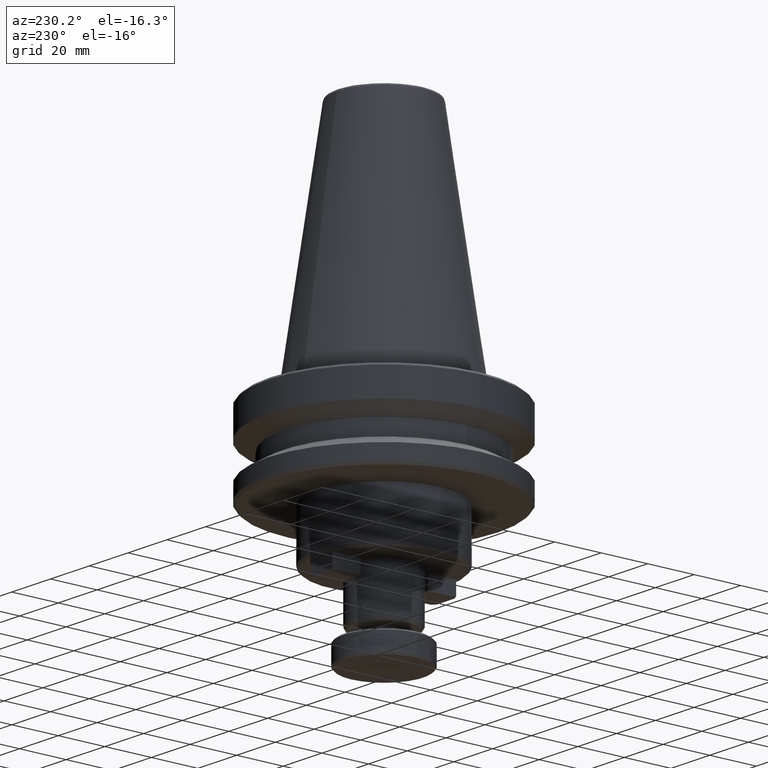
[diagram: clean part render]
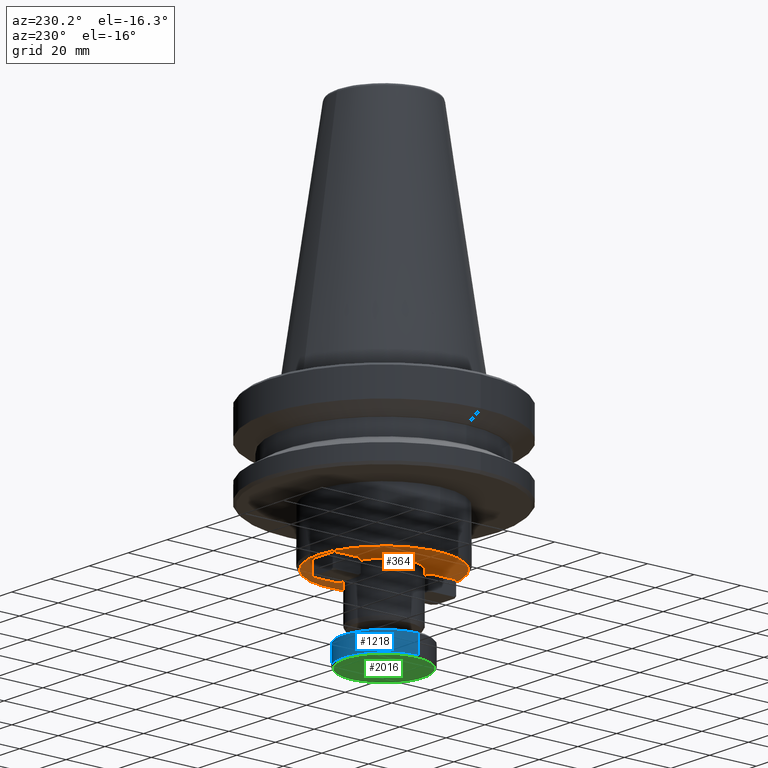
[diagram: same view with three faces highlighted in distinct colors, each labeled with its STEP entity id]
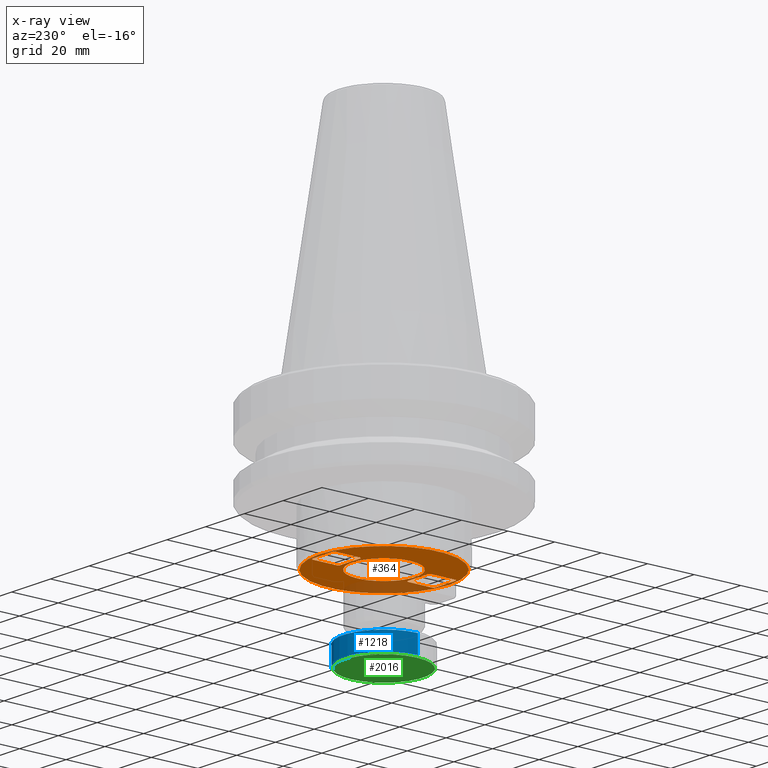
[diagram: x-ray of the same camera — body ghosted, the three highlighted faces saturated]
A machine part, auxiliary view with three faces highlighted in distinct colors.
The next image is the same camera in x-ray (body ghosted, the three faces saturated) — at least one of them is partly hidden behind the body in this view.
Their STEP definitions:

[orange] entity #364 — the highlighted planar face has unit normal (0, 0, -1).
#2 = ORIENTED_EDGE ( 'NONE', *, *, #1203, .T. ) ;
#12 = ORIENTED_EDGE ( 'NONE', *, *, #585, .T. ) ;
#17 = AXIS2_PLACEMENT_3D ( 'NONE', #122, #118, #115 ) ;
#42 = CIRCLE ( 'NONE', #17, 13.50000000000000200 ) ;
#53 = ORIENTED_EDGE ( 'NONE', *, *, #609, .T. ) ;
#69 = VERTEX_POINT ( 'NONE', #2094 ) ;
#96 = LINE ( 'NONE', #108, #453 ) ;
#103 = VERTEX_POINT ( 'NONE', #1410 ) ;
#108 = CARTESIAN_POINT ( 'NONE',  ( -5.400000000000011000, 26.50000000000000400, -60.00000000000000000 ) ) ;
#113 = DIRECTION ( 'NONE',  ( -0.7071067811865311400, -0.7071067811865638900, -0.0000000000000000000 ) ) ;
#115 = DIRECTION ( 'NONE',  ( 1.000000000000000000, 0.0000000000000000000, 0.0000000000000000000 ) ) ;
#118 = DIRECTION ( 'NONE',  ( 0.0000000000000000000, 0.0000000000000000000, 1.000000000000000000 ) ) ;
#122 = CARTESIAN_POINT ( 'NONE',  ( 0.0000000000000000000, 0.0000000000000000000, -60.00000000000001400 ) ) ;
#125 = DIRECTION ( 'NONE',  ( -0.7071067811865481300, 0.7071067811865470200, -0.0000000000000000000 ) ) ;
#172 = EDGE_CURVE ( 'NONE', #1590, #220, #2104, .T. ) ;
#174 = VERTEX_POINT ( 'NONE', #1795 ) ;
#220 = VERTEX_POINT ( 'NONE', #1137 ) ;
#224 = CARTESIAN_POINT ( 'NONE',  ( 13.50000000000000200, 0.0000000000000000000, -60.00000000000001400 ) ) ;
#271 = CARTESIAN_POINT ( 'NONE',  ( 0.0000000000000000000, -14.49999999999999800, -60.00000000000000000 ) ) ;
#276 = VECTOR ( 'NONE', #2610, 1000.000000000000100 ) ;
#278 = CIRCLE ( 'NONE', #2473, 28.00000000000000700 ) ;
#279 = EDGE_CURVE ( 'NONE', #103, #1699, #278, .T. ) ;
#280 = VERTEX_POINT ( 'NONE', #1556 ) ;
#286 = CARTESIAN_POINT ( 'NONE',  ( -6.000000000000006200, -25.89999999999998100, -60.00000000000000000 ) ) ;
#289 = DIRECTION ( 'NONE',  ( -1.000000000000000000, 0.0000000000000000000, -0.0000000000000000000 ) ) ;
#291 = VERTEX_POINT ( 'NONE', #1043 ) ;
#305 = CARTESIAN_POINT ( 'NONE',  ( 0.0000000000000000000, 26.50000000000000400, -60.00000000000000000 ) ) ;
#322 = VECTOR ( 'NONE', #2665, 1000.000000000000000 ) ;
#323 = CARTESIAN_POINT ( 'NONE',  ( -6.000000000000003600, -25.89999999999998400, -60.00000000000000000 ) ) ;
#329 = EDGE_CURVE ( 'NONE', #1699, #103, #1589, .T. ) ;
#334 = DIRECTION ( 'NONE',  ( -0.0000000000000000000, -1.000000000000000000, -0.0000000000000000000 ) ) ;
#340 = EDGE_CURVE ( 'NONE', #828, #2052, #479, .T. ) ;
#343 = ORIENTED_EDGE ( 'NONE', *, *, #673, .T. ) ;
#347 = CARTESIAN_POINT ( 'NONE',  ( -6.000000000000000000, 0.0000000000000000000, -60.00000000000000000 ) ) ;
#364 = ADVANCED_FACE ( 'NONE', ( #1517, #2211, #426, #2688 ), #753, .T. ) ;
#381 = VECTOR ( 'NONE', #2075, 1000.000000000000000 ) ;
#400 = CARTESIAN_POINT ( 'NONE',  ( 5.999999999999992900, 0.0000000000000000000, -60.00000000000000000 ) ) ;
#402 = VERTEX_POINT ( 'NONE', #2010 ) ;
#426 = FACE_BOUND ( 'NONE', #489, .T. ) ;
#432 = DIRECTION ( 'NONE',  ( 0.0000000000000000000, -1.196361017915039500E-016, 1.000000000000000000 ) ) ;
#445 = LINE ( 'NONE', #400, #2711 ) ;
#447 = DIRECTION ( 'NONE',  ( 0.7071067811865474600, 0.7071067811865474600, -0.0000000000000000000 ) ) ;
#451 = DIRECTION ( 'NONE',  ( 0.0000000000000000000, -1.000000000000000000, 0.0000000000000000000 ) ) ;
#453 = VECTOR ( 'NONE', #113, 1000.000000000000000 ) ;
#457 = DIRECTION ( 'NONE',  ( -1.000000000000000000, 0.0000000000000000000, -0.0000000000000000000 ) ) ;
#462 = ORIENTED_EDGE ( 'NONE', *, *, #2659, .T. ) ;
#479 = LINE ( 'NONE', #821, #2138 ) ;
#483 = EDGE_CURVE ( 'NONE', #1815, #220, #1763, .T. ) ;
#489 = EDGE_LOOP ( 'NONE', ( #2114, #2734, #462, #946, #2188, #53, #515, #1420 ) ) ;
#496 = VECTOR ( 'NONE', #2071, 1000.000000000000100 ) ;
#498 = EDGE_CURVE ( 'NONE', #1550, #1636, #617, .T. ) ;
#502 = DIRECTION ( 'NONE',  ( 0.0000000000000000000, -1.000000000000000000, 0.0000000000000000000 ) ) ;
#514 = CARTESIAN_POINT ( 'NONE',  ( 0.0000000000000000000, 1.196361017915032100E-016, -60.00000000000000000 ) ) ;
#515 = ORIENTED_EDGE ( 'NONE', *, *, #483, .T. ) ;
#547 = VERTEX_POINT ( 'NONE', #224 ) ;
#585 = EDGE_CURVE ( 'NONE', #2681, #547, #42, .T. ) ;
#609 = EDGE_CURVE ( 'NONE', #1636, #1815, #96, .T. ) ;
#617 = LINE ( 'NONE', #305, #1839 ) ;
#649 = CARTESIAN_POINT ( 'NONE',  ( 0.0000000000000000000, 1.196361017915032100E-016, -60.00000000000000000 ) ) ;
#663 = LINE ( 'NONE', #2557, #1898 ) ;
#673 = EDGE_CURVE ( 'NONE', #912, #402, #758, .T. ) ;
#695 = LINE ( 'NONE', #1592, #1316 ) ;
#737 = DIRECTION ( 'NONE',  ( 0.0000000000000000000, -1.196361017915039500E-016, 1.000000000000000000 ) ) ;
#753 = PLANE ( 'NONE',  #2212 ) ;
#758 = LINE ( 'NONE', #1973, #276 ) ;
#808 = CARTESIAN_POINT ( 'NONE',  ( -6.000000000000002700, 15.10000000000001600, -60.00000000000000000 ) ) ;
#821 = CARTESIAN_POINT ( 'NONE',  ( 5.399999999999953300, 14.49999999999999500, -60.00000000000000000 ) ) ;
#824 = ORIENTED_EDGE ( 'NONE', *, *, #2579, .T. ) ;
#828 = VERTEX_POINT ( 'NONE', #1743 ) ;
#836 = VECTOR ( 'NONE', #125, 1000.000000000000000 ) ;
#856 = CARTESIAN_POINT ( 'NONE',  ( 0.0000000000000000000, 0.0000000000000000000, -60.00000000000001400 ) ) ;
#873 = EDGE_CURVE ( 'NONE', #547, #2681, #1028, .T. ) ;
#887 = ORIENTED_EDGE ( 'NONE', *, *, #2344, .T. ) ;
#888 = LINE ( 'NONE', #286, #836 ) ;
#894 = ORIENTED_EDGE ( 'NONE', *, *, #329, .F. ) ;
#912 = VERTEX_POINT ( 'NONE', #2706 ) ;
#942 = EDGE_CURVE ( 'NONE', #69, #291, #445, .T. ) ;
#946 = ORIENTED_EDGE ( 'NONE', *, *, #1808, .F. ) ;
#979 = CARTESIAN_POINT ( 'NONE',  ( 0.0000000000000000000, 0.0000000000000000000, -60.00000000000000000 ) ) ;
#982 = EDGE_LOOP ( 'NONE', ( #894, #1514 ) ) ;
#1028 = CIRCLE ( 'NONE', #2369, 13.50000000000000200 ) ;
#1029 = VECTOR ( 'NONE', #457, 1000.000000000000000 ) ;
#1043 = CARTESIAN_POINT ( 'NONE',  ( 5.999999999999994700, -15.10000000000004400, -60.00000000000000000 ) ) ;
#1071 = DIRECTION ( 'NONE',  ( 1.000000000000000000, 0.0000000000000000000, 0.0000000000000000000 ) ) ;
#1108 = DIRECTION ( 'NONE',  ( 0.0000000000000000000, 1.000000000000000000, 0.0000000000000000000 ) ) ;
#1113 = CARTESIAN_POINT ( 'NONE',  ( 5.999999999999998200, 0.0000000000000000000, -60.00000000000000000 ) ) ;
#1130 = CARTESIAN_POINT ( 'NONE',  ( -13.50000000000000200, 1.653273178848927100E-015, -60.00000000000001400 ) ) ;
#1137 = CARTESIAN_POINT ( 'NONE',  ( -6.000000000000001800, 15.10000000000001600, -60.00000000000000000 ) ) ;
#1147 = VECTOR ( 'NONE', #334, 1000.000000000000000 ) ;
#1148 = DIRECTION ( 'NONE',  ( -0.7071067811865470200, 0.7071067811865480200, -0.0000000000000000000 ) ) ;
#1156 = CARTESIAN_POINT ( 'NONE',  ( 5.399999999999982600, 26.50000000000000400, -60.00000000000000000 ) ) ;
#1203 = EDGE_CURVE ( 'NONE', #280, #912, #1644, .T. ) ;
#1217 = VECTOR ( 'NONE', #1108, 1000.000000000000000 ) ;
#1261 = DIRECTION ( 'NONE',  ( -0.0000000000000000000, -1.000000000000000000, -0.0000000000000000000 ) ) ;
#1272 = CARTESIAN_POINT ( 'NONE',  ( -5.999999999999995600, 0.0000000000000000000, -60.00000000000000000 ) ) ;
#1276 = EDGE_CURVE ( 'NONE', #174, #1437, #888, .T. ) ;
#1316 = VECTOR ( 'NONE', #1586, 1000.000000000000000 ) ;
#1400 = VECTOR ( 'NONE', #1148, 1000.000000000000000 ) ;
#1410 = CARTESIAN_POINT ( 'NONE',  ( 3.490243377569955700E-015, 28.00000000000000700, -60.00000000000000000 ) ) ;
#1420 = ORIENTED_EDGE ( 'NONE', *, *, #172, .F. ) ;
#1437 = VERTEX_POINT ( 'NONE', #323 ) ;
#1500 = ORIENTED_EDGE ( 'NONE', *, *, #942, .T. ) ;
#1514 = ORIENTED_EDGE ( 'NONE', *, *, #279, .F. ) ;
#1517 = FACE_OUTER_BOUND ( 'NONE', #982, .T. ) ;
#1534 = CARTESIAN_POINT ( 'NONE',  ( 5.400000000000003000, -26.50000000000000400, -60.00000000000000000 ) ) ;
#1550 = VERTEX_POINT ( 'NONE', #1156 ) ;
#1556 = CARTESIAN_POINT ( 'NONE',  ( 5.399999999999948800, -14.49999999999999800, -60.00000000000000000 ) ) ;
#1586 = DIRECTION ( 'NONE',  ( 0.7071067811865311400, 0.7071067811865638900, -0.0000000000000000000 ) ) ;
#1589 = CIRCLE ( 'NONE', #2605, 28.00000000000000700 ) ;
#1590 = VERTEX_POINT ( 'NONE', #2480 ) ;
#1592 = CARTESIAN_POINT ( 'NONE',  ( 5.400000000000003900, -26.50000000000000000, -60.00000000000000000 ) ) ;
#1599 = EDGE_LOOP ( 'NONE', ( #2673, #887, #1500, #2122, #2, #343, #824, #2042 ) ) ;
#1636 = VERTEX_POINT ( 'NONE', #2697 ) ;
#1644 = LINE ( 'NONE', #271, #1029 ) ;
#1650 = EDGE_CURVE ( 'NONE', #1590, #828, #2091, .T. ) ;
#1699 = VERTEX_POINT ( 'NONE', #2632 ) ;
#1743 = CARTESIAN_POINT ( 'NONE',  ( 5.399999999999955100, 14.49999999999999500, -60.00000000000000000 ) ) ;
#1763 = LINE ( 'NONE', #347, #1147 ) ;
#1778 = VERTEX_POINT ( 'NONE', #2547 ) ;
#1795 = CARTESIAN_POINT ( 'NONE',  ( -5.399999999999987900, -26.50000000000000000, -60.00000000000000000 ) ) ;
#1808 = EDGE_CURVE ( 'NONE', #1550, #1778, #663, .T. ) ;
#1815 = VERTEX_POINT ( 'NONE', #2518 ) ;
#1839 = VECTOR ( 'NONE', #289, 1000.000000000000000 ) ;
#1898 = VECTOR ( 'NONE', #2539, 1000.000000000000100 ) ;
#1973 = CARTESIAN_POINT ( 'NONE',  ( -5.400000000000005700, -14.49999999999999800, -60.00000000000000000 ) ) ;
#1977 = EDGE_CURVE ( 'NONE', #280, #291, #2161, .T. ) ;
#1985 = LINE ( 'NONE', #1113, #1217 ) ;
#1990 = EDGE_CURVE ( 'NONE', #174, #2393, #2014, .T. ) ;
#2008 = CARTESIAN_POINT ( 'NONE',  ( 5.999999999999998200, 15.10000000000004100, -60.00000000000000000 ) ) ;
#2010 = CARTESIAN_POINT ( 'NONE',  ( -5.999999999999994700, -15.10000000000001600, -60.00000000000000000 ) ) ;
#2014 = LINE ( 'NONE', #2064, #381 ) ;
#2023 = DIRECTION ( 'NONE',  ( 0.0000000000000000000, 0.0000000000000000000, -1.000000000000000000 ) ) ;
#2025 = DIRECTION ( 'NONE',  ( -1.000000000000000000, 0.0000000000000000000, -0.0000000000000000000 ) ) ;
#2042 = ORIENTED_EDGE ( 'NONE', *, *, #1276, .F. ) ;
#2052 = VERTEX_POINT ( 'NONE', #2008 ) ;
#2057 = VECTOR ( 'NONE', #1261, 1000.000000000000000 ) ;
#2064 = CARTESIAN_POINT ( 'NONE',  ( 0.0000000000000000000, -26.50000000000000000, -60.00000000000000000 ) ) ;
#2071 = DIRECTION ( 'NONE',  ( 0.7071067811865474600, -0.7071067811865474600, -0.0000000000000000000 ) ) ;
#2073 = CARTESIAN_POINT ( 'NONE',  ( 5.999999999999994700, -15.10000000000004400, -60.00000000000000000 ) ) ;
#2075 = DIRECTION ( 'NONE',  ( 1.000000000000000000, -0.0000000000000000000, 0.0000000000000000000 ) ) ;
#2091 = LINE ( 'NONE', #2694, #322 ) ;
#2094 = CARTESIAN_POINT ( 'NONE',  ( 5.999999999999993800, -25.89999999999997700, -60.00000000000000000 ) ) ;
#2104 = LINE ( 'NONE', #808, #1400 ) ;
#2112 = DIRECTION ( 'NONE',  ( 0.0000000000000000000, 1.000000000000000000, 0.0000000000000000000 ) ) ;
#2114 = ORIENTED_EDGE ( 'NONE', *, *, #1650, .T. ) ;
#2122 = ORIENTED_EDGE ( 'NONE', *, *, #1977, .F. ) ;
#2126 = LINE ( 'NONE', #1272, #2057 ) ;
#2135 = ORIENTED_EDGE ( 'NONE', *, *, #873, .T. ) ;
#2138 = VECTOR ( 'NONE', #447, 1000.000000000000100 ) ;
#2161 = LINE ( 'NONE', #2073, #496 ) ;
#2188 = ORIENTED_EDGE ( 'NONE', *, *, #498, .T. ) ;
#2211 = FACE_BOUND ( 'NONE', #2221, .T. ) ;
#2212 = AXIS2_PLACEMENT_3D ( 'NONE', #979, #2023, #2025 ) ;
#2221 = EDGE_LOOP ( 'NONE', ( #2135, #12 ) ) ;
#2344 = EDGE_CURVE ( 'NONE', #2393, #69, #695, .T. ) ;
#2369 = AXIS2_PLACEMENT_3D ( 'NONE', #856, #2479, #1071 ) ;
#2393 = VERTEX_POINT ( 'NONE', #1534 ) ;
#2473 = AXIS2_PLACEMENT_3D ( 'NONE', #649, #737, #502 ) ;
#2479 = DIRECTION ( 'NONE',  ( 0.0000000000000000000, 0.0000000000000000000, 1.000000000000000000 ) ) ;
#2480 = CARTESIAN_POINT ( 'NONE',  ( -5.399999999999987900, 14.49999999999999800, -60.00000000000000000 ) ) ;
#2518 = CARTESIAN_POINT ( 'NONE',  ( -6.000000000000000000, 25.89999999999998400, -60.00000000000000000 ) ) ;
#2539 = DIRECTION ( 'NONE',  ( 0.7071067811865474600, -0.7071067811865474600, -0.0000000000000000000 ) ) ;
#2547 = CARTESIAN_POINT ( 'NONE',  ( 5.999999999999999100, 25.89999999999998400, -60.00000000000000000 ) ) ;
#2557 = CARTESIAN_POINT ( 'NONE',  ( 6.000000000000000000, 25.89999999999998400, -60.00000000000000000 ) ) ;
#2579 = EDGE_CURVE ( 'NONE', #402, #1437, #2126, .T. ) ;
#2605 = AXIS2_PLACEMENT_3D ( 'NONE', #514, #432, #451 ) ;
#2610 = DIRECTION ( 'NONE',  ( -0.7071067811865317000, -0.7071067811865632300, -0.0000000000000000000 ) ) ;
#2632 = CARTESIAN_POINT ( 'NONE',  ( 0.0000000000000000000, -28.00000000000000700, -60.00000000000000000 ) ) ;
#2659 = EDGE_CURVE ( 'NONE', #2052, #1778, #1985, .T. ) ;
#2665 = DIRECTION ( 'NONE',  ( 1.000000000000000000, -0.0000000000000000000, 0.0000000000000000000 ) ) ;
#2673 = ORIENTED_EDGE ( 'NONE', *, *, #1990, .T. ) ;
#2681 = VERTEX_POINT ( 'NONE', #1130 ) ;
#2688 = FACE_BOUND ( 'NONE', #1599, .T. ) ;
#2694 = CARTESIAN_POINT ( 'NONE',  ( 0.0000000000000000000, 14.49999999999999800, -60.00000000000000000 ) ) ;
#2697 = CARTESIAN_POINT ( 'NONE',  ( -5.400000000000010100, 26.50000000000000400, -60.00000000000000000 ) ) ;
#2706 = CARTESIAN_POINT ( 'NONE',  ( -5.400000000000005700, -14.49999999999999800, -60.00000000000000000 ) ) ;
#2711 = VECTOR ( 'NONE', #2112, 1000.000000000000000 ) ;
#2734 = ORIENTED_EDGE ( 'NONE', *, *, #340, .T. ) ;

[blue] entity #1218 — the highlighted cylindrical surface (partial cylindrical patch) has radius 17.5 mm, axis along (0, 0, 1).
#61 = FACE_OUTER_BOUND ( 'NONE', #2467, .T. ) ;
#73 = VERTEX_POINT ( 'NONE', #1117 ) ;
#277 = DIRECTION ( 'NONE',  ( 1.000000000000000000, 0.0000000000000000000, 0.0000000000000000000 ) ) ;
#283 = VERTEX_POINT ( 'NONE', #1480 ) ;
#331 = LINE ( 'NONE', #1641, #2643 ) ;
#393 = EDGE_CURVE ( 'NONE', #283, #73, #1362, .T. ) ;
#539 = AXIS2_PLACEMENT_3D ( 'NONE', #1907, #1882, #967 ) ;
#635 = CIRCLE ( 'NONE', #2559, 17.49999999999999600 ) ;
#666 = CARTESIAN_POINT ( 'NONE',  ( 0.0000000000000000000, 0.0000000000000000000, -85.70000000000000300 ) ) ;
#679 = ORIENTED_EDGE ( 'NONE', *, *, #844, .F. ) ;
#720 = LINE ( 'NONE', #2569, #1820 ) ;
#844 = EDGE_CURVE ( 'NONE', #2410, #1688, #635, .T. ) ;
#848 = DIRECTION ( 'NONE',  ( -1.000000000000000000, 0.0000000000000000000, 0.0000000000000000000 ) ) ;
#967 = DIRECTION ( 'NONE',  ( 1.000000000000000000, 0.0000000000000000000, 0.0000000000000000000 ) ) ;
#1117 = CARTESIAN_POINT ( 'NONE',  ( -17.50000000000000400, 2.143131898507868600E-015, -93.29999999999998300 ) ) ;
#1157 = ORIENTED_EDGE ( 'NONE', *, *, #393, .T. ) ;
#1218 = ADVANCED_FACE ( 'NONE', ( #61 ), #1579, .T. ) ;
#1238 = ORIENTED_EDGE ( 'NONE', *, *, #2309, .F. ) ;
#1362 = CIRCLE ( 'NONE', #539, 17.50000000000000000 ) ;
#1480 = CARTESIAN_POINT ( 'NONE',  ( 17.50000000000000400, 0.0000000000000000000, -93.29999999999998300 ) ) ;
#1487 = CARTESIAN_POINT ( 'NONE',  ( 0.0000000000000000000, 0.0000000000000000000, 0.0000000000000000000 ) ) ;
#1538 = CARTESIAN_POINT ( 'NONE',  ( 17.49999999999999600, 0.0000000000000000000, -85.70000000000000300 ) ) ;
#1579 = CYLINDRICAL_SURFACE ( 'NONE', #1669, 17.50000000000000000 ) ;
#1639 = DIRECTION ( 'NONE',  ( 0.0000000000000000000, 0.0000000000000000000, 1.000000000000000000 ) ) ;
#1641 = CARTESIAN_POINT ( 'NONE',  ( 17.50000000000000000, 0.0000000000000000000, 0.0000000000000000000 ) ) ;
#1669 = AXIS2_PLACEMENT_3D ( 'NONE', #1487, #2420, #277 ) ;
#1688 = VERTEX_POINT ( 'NONE', #2644 ) ;
#1764 = EDGE_CURVE ( 'NONE', #73, #1688, #720, .T. ) ;
#1820 = VECTOR ( 'NONE', #2553, 1000.000000000000000 ) ;
#1882 = DIRECTION ( 'NONE',  ( 0.0000000000000000000, 0.0000000000000000000, 1.000000000000000000 ) ) ;
#1907 = CARTESIAN_POINT ( 'NONE',  ( 0.0000000000000000000, 0.0000000000000000000, -93.29999999999998300 ) ) ;
#2227 = DIRECTION ( 'NONE',  ( -0.0000000000000000000, -0.0000000000000000000, 1.000000000000000000 ) ) ;
#2309 = EDGE_CURVE ( 'NONE', #283, #2410, #331, .T. ) ;
#2405 = ORIENTED_EDGE ( 'NONE', *, *, #1764, .T. ) ;
#2410 = VERTEX_POINT ( 'NONE', #1538 ) ;
#2420 = DIRECTION ( 'NONE',  ( 0.0000000000000000000, 0.0000000000000000000, 1.000000000000000000 ) ) ;
#2467 = EDGE_LOOP ( 'NONE', ( #1157, #2405, #679, #1238 ) ) ;
#2553 = DIRECTION ( 'NONE',  ( 0.0000000000000000000, 0.0000000000000000000, 1.000000000000000000 ) ) ;
#2559 = AXIS2_PLACEMENT_3D ( 'NONE', #666, #2227, #848 ) ;
#2569 = CARTESIAN_POINT ( 'NONE',  ( -17.50000000000000000, 2.143131898507868200E-015, 0.0000000000000000000 ) ) ;
#2643 = VECTOR ( 'NONE', #1639, 1000.000000000000000 ) ;
#2644 = CARTESIAN_POINT ( 'NONE',  ( -17.49999999999999600, 2.143131898507867900E-015, -85.70000000000000300 ) ) ;

[green] entity #2016 — the highlighted planar face has unit normal (0, 0, 1).
#235 = CIRCLE ( 'NONE', #1623, 16.80000000000000100 ) ;
#241 = VERTEX_POINT ( 'NONE', #811 ) ;
#466 = CARTESIAN_POINT ( 'NONE',  ( 16.80000000000000100, 0.0000000000000000000, -93.99999999999998600 ) ) ;
#648 = VERTEX_POINT ( 'NONE', #466 ) ;
#719 = AXIS2_PLACEMENT_3D ( 'NONE', #2039, #2045, #2030 ) ;
#811 = CARTESIAN_POINT ( 'NONE',  ( -16.80000000000000100, 2.100269260537711500E-015, -93.99999999999998600 ) ) ;
#1067 = DIRECTION ( 'NONE',  ( 0.0000000000000000000, 0.0000000000000000000, 1.000000000000000000 ) ) ;
#1243 = EDGE_LOOP ( 'NONE', ( #1305, #1922 ) ) ;
#1305 = ORIENTED_EDGE ( 'NONE', *, *, #2056, .F. ) ;
#1358 = EDGE_CURVE ( 'NONE', #241, #648, #235, .T. ) ;
#1623 = AXIS2_PLACEMENT_3D ( 'NONE', #2475, #1067, #2702 ) ;
#1922 = ORIENTED_EDGE ( 'NONE', *, *, #1358, .F. ) ;
#1974 = DIRECTION ( 'NONE',  ( 1.000000000000000000, 0.0000000000000000000, 0.0000000000000000000 ) ) ;
#1978 = DIRECTION ( 'NONE',  ( 0.0000000000000000000, 0.0000000000000000000, 1.000000000000000000 ) ) ;
#1983 = CARTESIAN_POINT ( 'NONE',  ( 0.0000000000000000000, 0.0000000000000000000, -93.99999999999998600 ) ) ;
#2016 = ADVANCED_FACE ( 'NONE', ( #2303 ), #2033, .F. ) ;
#2030 = DIRECTION ( 'NONE',  ( 1.000000000000000000, 0.0000000000000000000, -0.0000000000000000000 ) ) ;
#2033 = PLANE ( 'NONE',  #719 ) ;
#2039 = CARTESIAN_POINT ( 'NONE',  ( 0.0000000000000000000, 16.80000000000000100, -93.99999999999998600 ) ) ;
#2045 = DIRECTION ( 'NONE',  ( 0.0000000000000000000, 0.0000000000000000000, 1.000000000000000000 ) ) ;
#2056 = EDGE_CURVE ( 'NONE', #648, #241, #2708, .T. ) ;
#2146 = AXIS2_PLACEMENT_3D ( 'NONE', #1983, #1978, #1974 ) ;
#2303 = FACE_OUTER_BOUND ( 'NONE', #1243, .T. ) ;
#2475 = CARTESIAN_POINT ( 'NONE',  ( 0.0000000000000000000, 0.0000000000000000000, -93.99999999999998600 ) ) ;
#2702 = DIRECTION ( 'NONE',  ( 1.000000000000000000, 0.0000000000000000000, 0.0000000000000000000 ) ) ;
#2708 = CIRCLE ( 'NONE', #2146, 16.80000000000000100 ) ;